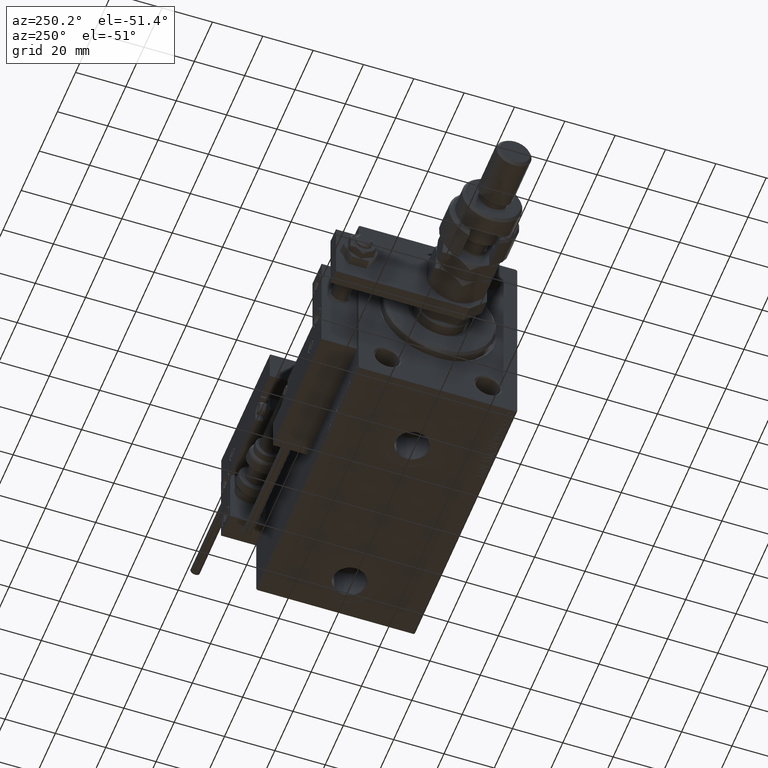
[diagram: clean part render]
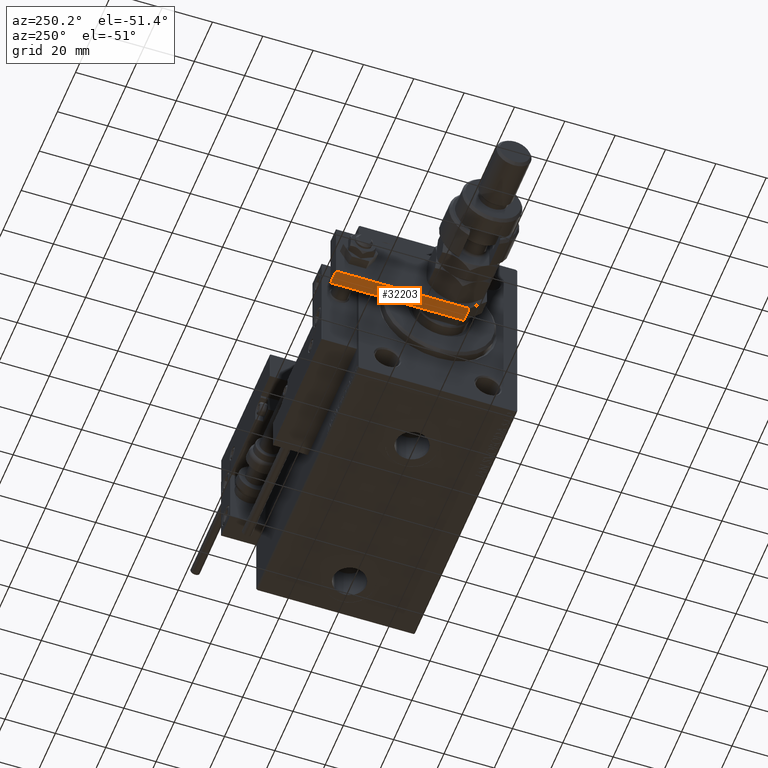
[diagram: same view with one face highlighted and labeled with its STEP entity id]
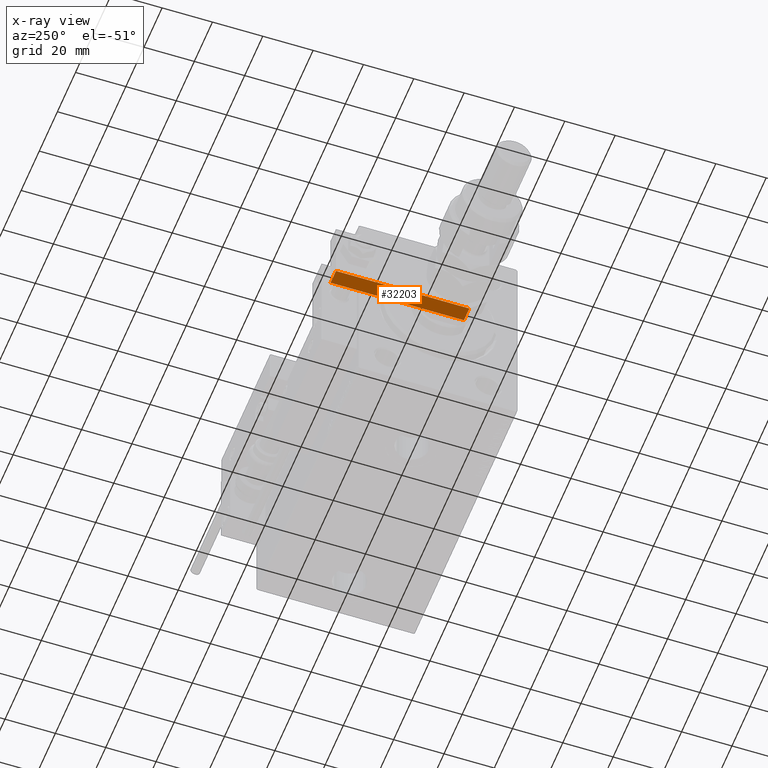
[diagram: x-ray of the same camera — body ghosted, the highlighted face saturated]
A machine part, auxiliary view. The second image highlights one B-rep face of the part: STEP entity #32203.
The next image is the same camera in x-ray: the body ghosted, the highlighted face saturated — about 0% of this face is hidden behind the body in this view.
In plain terms, the highlighted planar face has unit normal (0, -0, 1).
Its self-contained STEP definition (entity closure, byte-faithful):
#555 = LINE ( 'NONE', #9525, #13048 ) ;
#1659 = CARTESIAN_POINT ( 'NONE',  ( -12.49999999999999822, 60.00000000000000000, 6.000000000000000000 ) ) ;
#4552 = VERTEX_POINT ( 'NONE', #1659 ) ;
#6116 = VECTOR ( 'NONE', #28635, 1000.000000000000000 ) ;
#6471 = EDGE_CURVE ( 'NONE', #16483, #23065, #24457, .T. ) ;
#8682 = DIRECTION ( 'NONE',  ( -8.673617379884035472E-17, -1.000000000000000000, 0.000000000000000000 ) ) ;
#9525 = CARTESIAN_POINT ( 'NONE',  ( -12.49999999999999822, 60.00000000000000000, 6.000000000000000000 ) ) ;
#9891 = EDGE_CURVE ( 'NONE', #4552, #46732, #23443, .T. ) ;
#10609 = ORIENTED_EDGE ( 'NONE', *, *, #9891, .T. ) ;
#10749 = CARTESIAN_POINT ( 'NONE',  ( -12.49999999999999822, 60.00000000000000000, 6.000000000000000000 ) ) ;
#11684 = DIRECTION ( 'NONE',  ( -0.000000000000000000, -0.000000000000000000, -1.000000000000000000 ) ) ;
#13048 = VECTOR ( 'NONE', #8682, 1000.000000000000000 ) ;
#13187 = EDGE_CURVE ( 'NONE', #4552, #23065, #555, .T. ) ;
#15528 = DIRECTION ( 'NONE',  ( 0.000000000000000000, 0.000000000000000000, 1.000000000000000000 ) ) ;
#16483 = VERTEX_POINT ( 'NONE', #27381 ) ;
#17664 = EDGE_CURVE ( 'NONE', #46732, #16483, #49945, .T. ) ;
#19320 = ORIENTED_EDGE ( 'NONE', *, *, #13187, .F. ) ;
#19706 = CARTESIAN_POINT ( 'NONE',  ( -12.49999999999999822, 60.00000000000000000, 0.000000000000000000 ) ) ;
#23008 = VECTOR ( 'NONE', #15528, 1000.000000000000000 ) ;
#23065 = VERTEX_POINT ( 'NONE', #47917 ) ;
#23443 = LINE ( 'NONE', #40512, #24501 ) ;
#24457 = LINE ( 'NONE', #32588, #23008 ) ;
#24501 = VECTOR ( 'NONE', #11684, 1000.000000000000000 ) ;
#26391 = EDGE_LOOP ( 'NONE', ( #34912, #28528, #19320, #10609 ) ) ;
#27381 = CARTESIAN_POINT ( 'NONE',  ( -12.50000000000000355, 7.000000000000013323, 0.000000000000000000 ) ) ;
#28528 = ORIENTED_EDGE ( 'NONE', *, *, #6471, .T. ) ;
#28635 = DIRECTION ( 'NONE',  ( -8.673617379884035472E-17, -1.000000000000000000, 0.000000000000000000 ) ) ;
#29636 = AXIS2_PLACEMENT_3D ( 'NONE', #10749, #48278, #35377 ) ;
#32203 = ADVANCED_FACE ( 'NONE', ( #49116 ), #39843, .F. ) ;
#32588 = CARTESIAN_POINT ( 'NONE',  ( -12.50000000000000355, 7.000000000000013323, 6.000000000000000000 ) ) ;
#33562 = CARTESIAN_POINT ( 'NONE',  ( -12.49999999999999822, 60.00000000000000000, 0.000000000000000000 ) ) ;
#34912 = ORIENTED_EDGE ( 'NONE', *, *, #17664, .T. ) ;
#35377 = DIRECTION ( 'NONE',  ( 8.673617379884034239E-17, 1.000000000000000000, 0.000000000000000000 ) ) ;
#39843 = PLANE ( 'NONE',  #29636 ) ;
#40512 = CARTESIAN_POINT ( 'NONE',  ( -12.49999999999999822, 60.00000000000000000, 6.000000000000000000 ) ) ;
#46732 = VERTEX_POINT ( 'NONE', #33562 ) ;
#47917 = CARTESIAN_POINT ( 'NONE',  ( -12.50000000000000355, 7.000000000000013323, 6.000000000000000000 ) ) ;
#48278 = DIRECTION ( 'NONE',  ( 1.000000000000000000, -8.673617379884034239E-17, 0.000000000000000000 ) ) ;
#49116 = FACE_OUTER_BOUND ( 'NONE', #26391, .T. ) ;
#49945 = LINE ( 'NONE', #19706, #6116 ) ;